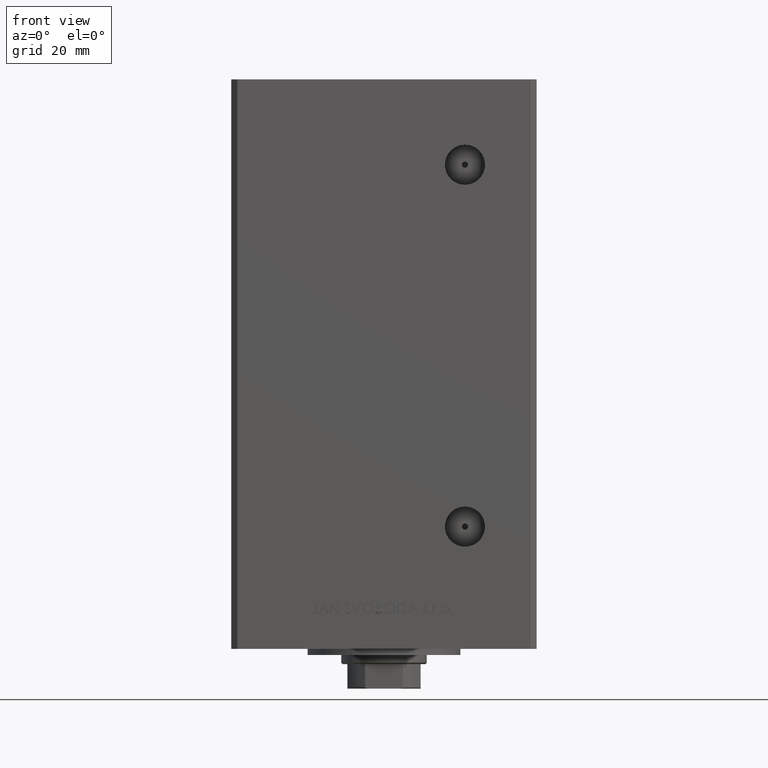
[diagram: clean part render]
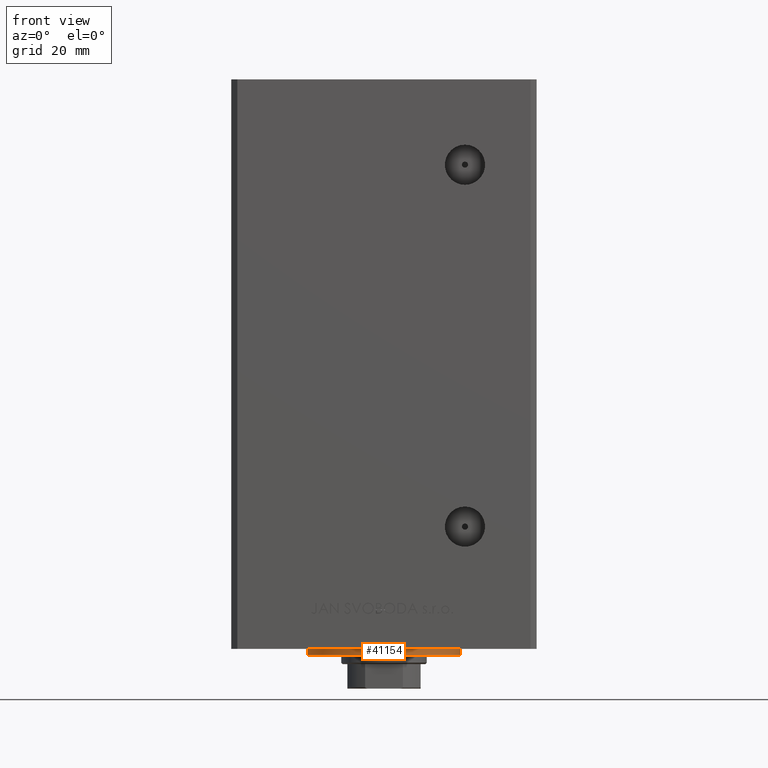
[diagram: same view with one face highlighted and labeled with its STEP entity id]
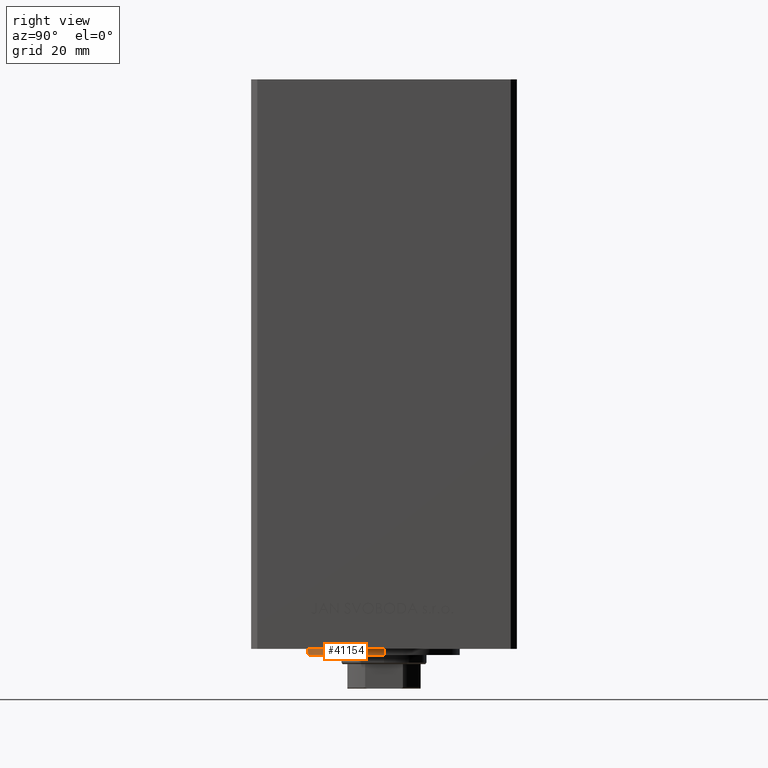
[diagram: same view with one face highlighted and labeled with its STEP entity id]
A machine part, front view. The second image highlights one B-rep face of the part: STEP entity #41154.
A second angle (right view) of the same face is appended — the face is thin or edge-on in the first view.
In plain terms, the highlighted cylindrical surface (partial cylindrical patch) has radius 25 mm, axis along (0, 0, 1).
Its self-contained STEP definition (entity closure, byte-faithful):
#2258 = LINE ( 'NONE', #20578, #11093 ) ;
#2289 = DIRECTION ( 'NONE',  ( 1.000000000000000000, 0.000000000000000000, 0.000000000000000000 ) ) ;
#2543 = AXIS2_PLACEMENT_3D ( 'NONE', #30590, #46034, #2289 ) ;
#3459 = EDGE_CURVE ( 'NONE', #17631, #33521, #45507, .T. ) ;
#3771 = DIRECTION ( 'NONE',  ( 1.000000000000000000, 0.000000000000000000, 0.000000000000000000 ) ) ;
#4148 = DIRECTION ( 'NONE',  ( 1.000000000000000000, 0.000000000000000000, 0.000000000000000000 ) ) ;
#5724 = ORIENTED_EDGE ( 'NONE', *, *, #42953, .T. ) ;
#6854 = DIRECTION ( 'NONE',  ( 0.000000000000000000, 0.000000000000000000, 1.000000000000000000 ) ) ;
#7708 = CARTESIAN_POINT ( 'NONE',  ( 0.000000000000000000, -6.938893903907228378E-15, 0.000000000000000000 ) ) ;
#8602 = ORIENTED_EDGE ( 'NONE', *, *, #25969, .F. ) ;
#8690 = AXIS2_PLACEMENT_3D ( 'NONE', #33411, #22226, #48867 ) ;
#8798 = VERTEX_POINT ( 'NONE', #34779 ) ;
#11093 = VECTOR ( 'NONE', #48715, 1000.000000000000000 ) ;
#11260 = AXIS2_PLACEMENT_3D ( 'NONE', #7708, #23463, #4148 ) ;
#11904 = CARTESIAN_POINT ( 'NONE',  ( 0.000000000000000000, -6.938893903907228378E-15, 0.000000000000000000 ) ) ;
#12210 = CARTESIAN_POINT ( 'NONE',  ( -23.57022603955158502, -8.333333333333332149, 0.000000000000000000 ) ) ;
#14327 = AXIS2_PLACEMENT_3D ( 'NONE', #11904, #39051, #3771 ) ;
#15863 = DIRECTION ( 'NONE',  ( -1.000000000000000000, 0.000000000000000000, 0.000000000000000000 ) ) ;
#16132 = CARTESIAN_POINT ( 'NONE',  ( -25.00000000000000000, -6.938893903907228378E-15, 2.000000000000000000 ) ) ;
#17372 = VERTEX_POINT ( 'NONE', #47048 ) ;
#17503 = ORIENTED_EDGE ( 'NONE', *, *, #42666, .F. ) ;
#17631 = VERTEX_POINT ( 'NONE', #43682 ) ;
#18564 = DIRECTION ( 'NONE',  ( 1.000000000000000000, 0.000000000000000000, 0.000000000000000000 ) ) ;
#20201 = LINE ( 'NONE', #16132, #31349 ) ;
#20578 = CARTESIAN_POINT ( 'NONE',  ( 25.00000000000000000, -3.877276906038844941E-15, 2.000000000000000000 ) ) ;
#21002 = EDGE_CURVE ( 'NONE', #46882, #17631, #20201, .T. ) ;
#22226 = DIRECTION ( 'NONE',  ( 0.000000000000000000, 0.000000000000000000, 1.000000000000000000 ) ) ;
#23463 = DIRECTION ( 'NONE',  ( 0.000000000000000000, 0.000000000000000000, 1.000000000000000000 ) ) ;
#24875 = CIRCLE ( 'NONE', #14327, 25.00000000000000000 ) ;
#25969 = EDGE_CURVE ( 'NONE', #46882, #28938, #38648, .T. ) ;
#26417 = CARTESIAN_POINT ( 'NONE',  ( 0.000000000000000000, -6.938893903907228378E-15, 0.000000000000000000 ) ) ;
#28411 = ORIENTED_EDGE ( 'NONE', *, *, #40764, .T. ) ;
#28595 = CARTESIAN_POINT ( 'NONE',  ( 0.000000000000000000, -25.00000000000000000, 0.000000000000000000 ) ) ;
#28858 = CIRCLE ( 'NONE', #32108, 25.00000000000000000 ) ;
#28938 = VERTEX_POINT ( 'NONE', #48351 ) ;
#30314 = EDGE_CURVE ( 'NONE', #33521, #47528, #38795, .T. ) ;
#30590 = CARTESIAN_POINT ( 'NONE',  ( 0.000000000000000000, -6.938893903907228378E-15, 0.000000000000000000 ) ) ;
#31349 = VECTOR ( 'NONE', #31862, 1000.000000000000000 ) ;
#31862 = DIRECTION ( 'NONE',  ( -0.000000000000000000, -0.000000000000000000, -1.000000000000000000 ) ) ;
#32108 = AXIS2_PLACEMENT_3D ( 'NONE', #26417, #6854, #18564 ) ;
#33411 = CARTESIAN_POINT ( 'NONE',  ( 0.000000000000000000, -6.938893903907228378E-15, 2.000000000000000000 ) ) ;
#33521 = VERTEX_POINT ( 'NONE', #12210 ) ;
#34284 = ORIENTED_EDGE ( 'NONE', *, *, #21002, .T. ) ;
#34779 = CARTESIAN_POINT ( 'NONE',  ( 25.00000000000000000, -3.877276906038844941E-15, 0.000000000000000000 ) ) ;
#35145 = DIRECTION ( 'NONE',  ( -0.000000000000000000, -0.000000000000000000, -1.000000000000000000 ) ) ;
#36121 = AXIS2_PLACEMENT_3D ( 'NONE', #43757, #35145, #15863 ) ;
#38648 = CIRCLE ( 'NONE', #8690, 25.00000000000000000 ) ;
#38795 = CIRCLE ( 'NONE', #11260, 25.00000000000000000 ) ;
#39051 = DIRECTION ( 'NONE',  ( 0.000000000000000000, 0.000000000000000000, 1.000000000000000000 ) ) ;
#40575 = ORIENTED_EDGE ( 'NONE', *, *, #30314, .T. ) ;
#40764 = EDGE_CURVE ( 'NONE', #17372, #8798, #28858, .T. ) ;
#41081 = ORIENTED_EDGE ( 'NONE', *, *, #3459, .T. ) ;
#41154 = ADVANCED_FACE ( 'NONE', ( #42752 ), #43503, .T. ) ;
#42666 = EDGE_CURVE ( 'NONE', #28938, #8798, #2258, .T. ) ;
#42752 = FACE_OUTER_BOUND ( 'NONE', #47104, .T. ) ;
#42953 = EDGE_CURVE ( 'NONE', #47528, #17372, #24875, .T. ) ;
#43413 = CARTESIAN_POINT ( 'NONE',  ( -25.00000000000000000, -6.938893903907228378E-15, 2.000000000000000000 ) ) ;
#43503 = CYLINDRICAL_SURFACE ( 'NONE', #36121, 25.00000000000000000 ) ;
#43682 = CARTESIAN_POINT ( 'NONE',  ( -25.00000000000000000, -6.938893903907228378E-15, 0.000000000000000000 ) ) ;
#43757 = CARTESIAN_POINT ( 'NONE',  ( 0.000000000000000000, -6.938893903907228378E-15, 2.000000000000000000 ) ) ;
#45507 = CIRCLE ( 'NONE', #2543, 25.00000000000000000 ) ;
#46034 = DIRECTION ( 'NONE',  ( 0.000000000000000000, 0.000000000000000000, 1.000000000000000000 ) ) ;
#46882 = VERTEX_POINT ( 'NONE', #43413 ) ;
#47048 = CARTESIAN_POINT ( 'NONE',  ( 23.57022603955158502, -8.333333333333332149, 0.000000000000000000 ) ) ;
#47104 = EDGE_LOOP ( 'NONE', ( #17503, #8602, #34284, #41081, #40575, #5724, #28411 ) ) ;
#47528 = VERTEX_POINT ( 'NONE', #28595 ) ;
#48351 = CARTESIAN_POINT ( 'NONE',  ( 25.00000000000000000, -3.877276906038844941E-15, 2.000000000000000000 ) ) ;
#48715 = DIRECTION ( 'NONE',  ( -0.000000000000000000, -0.000000000000000000, -1.000000000000000000 ) ) ;
#48867 = DIRECTION ( 'NONE',  ( 1.000000000000000000, 0.000000000000000000, 0.000000000000000000 ) ) ;